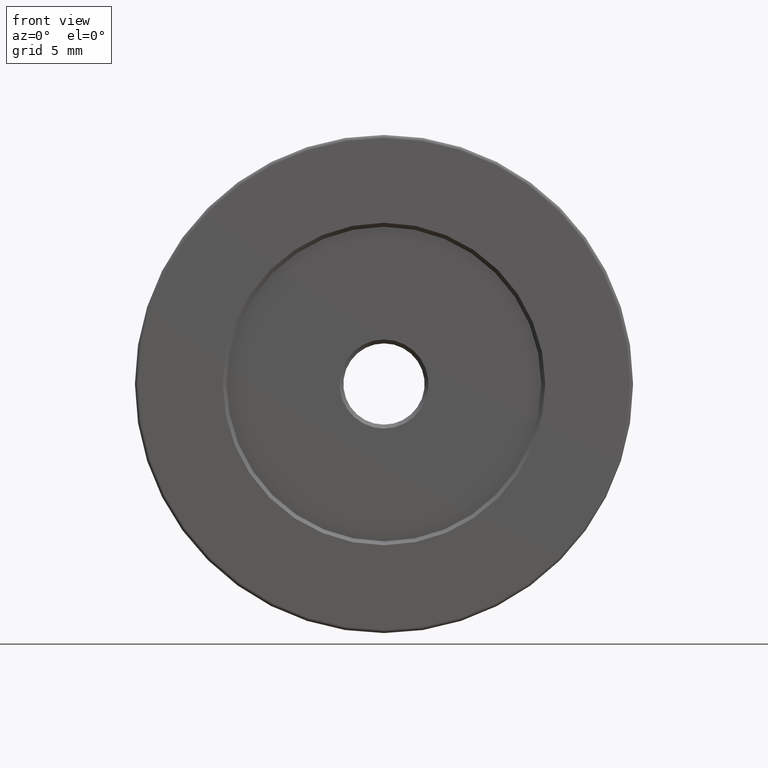
[diagram: clean part render]
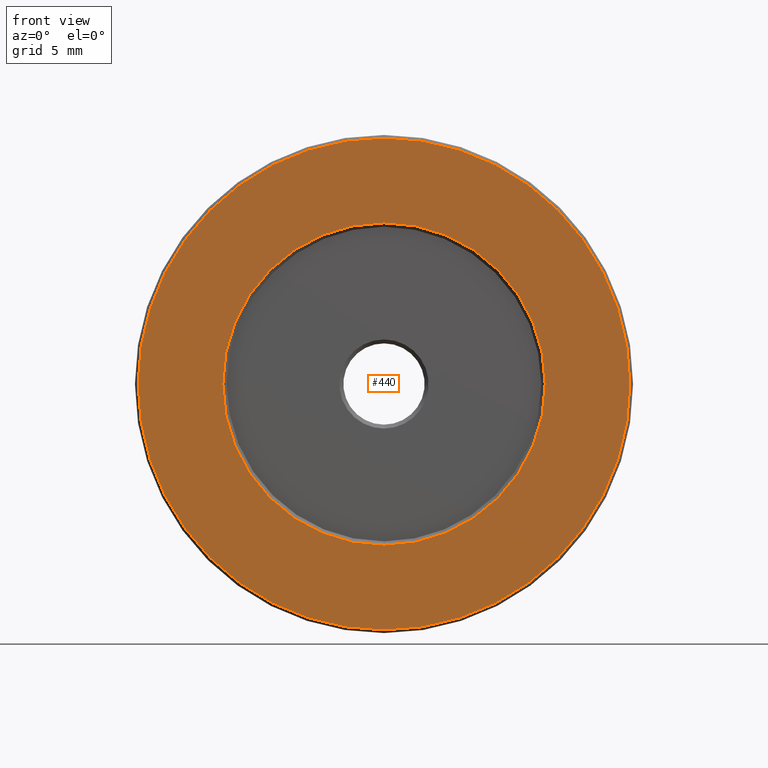
[diagram: same view with one face highlighted and labeled with its STEP entity id]
A machine part, front view. The second image highlights one B-rep face of the part: STEP entity #440.
In plain terms, the highlighted planar face has unit normal (0, 1, 0).
Its self-contained STEP definition (entity closure, byte-faithful):
#2 = ORIENTED_EDGE ( 'NONE', *, *, #85, .T. ) ;
#17 = DIRECTION ( 'NONE',  ( 0.000000000000000000, 0.000000000000000000, 1.000000000000000000 ) ) ;
#28 = VERTEX_POINT ( 'NONE', #605 ) ;
#48 = CARTESIAN_POINT ( 'NONE',  ( -7.546808913101045846, -10.39359512730272783, 19.25000000000000000 ) ) ;
#85 = EDGE_CURVE ( 'NONE', #426, #372, #377, .T. ) ;
#120 = ORIENTED_EDGE ( 'NONE', *, *, #368, .T. ) ;
#136 = DIRECTION ( 'NONE',  ( 0.000000000000000000, 0.000000000000000000, 1.000000000000000000 ) ) ;
#140 = AXIS2_PLACEMENT_3D ( 'NONE', #566, #147, #585 ) ;
#147 = DIRECTION ( 'NONE',  ( -0.000000000000000000, -1.000000000000000000, -0.000000000000000000 ) ) ;
#152 = DIRECTION ( 'NONE',  ( 0.000000000000000000, 1.000000000000000000, 0.000000000000000000 ) ) ;
#177 = DIRECTION ( 'NONE',  ( 0.000000000000000000, 1.000000000000000000, 0.000000000000000000 ) ) ;
#183 = CARTESIAN_POINT ( 'NONE',  ( -7.546808913101048510, -10.39359512730272783, 38.00000000000000000 ) ) ;
#283 = DIRECTION ( 'NONE',  ( 0.000000000000000000, 1.000000000000000000, 0.000000000000000000 ) ) ;
#299 = AXIS2_PLACEMENT_3D ( 'NONE', #183, #283, #510 ) ;
#310 = AXIS2_PLACEMENT_3D ( 'NONE', #444, #177, #454 ) ;
#311 = DIRECTION ( 'NONE',  ( -0.000000000000000000, -1.000000000000000000, -0.000000000000000000 ) ) ;
#315 = EDGE_CURVE ( 'NONE', #372, #426, #590, .T. ) ;
#328 = CARTESIAN_POINT ( 'NONE',  ( -7.546808913101048510, -10.39359512730272783, 25.69999999999999929 ) ) ;
#346 = AXIS2_PLACEMENT_3D ( 'NONE', #451, #311, #136 ) ;
#348 = CARTESIAN_POINT ( 'NONE',  ( -7.546808913101046734, -10.39359512730272783, 50.29999999999999716 ) ) ;
#354 = EDGE_LOOP ( 'NONE', ( #2, #589 ) ) ;
#368 = EDGE_CURVE ( 'NONE', #467, #28, #534, .T. ) ;
#372 = VERTEX_POINT ( 'NONE', #348 ) ;
#377 = CIRCLE ( 'NONE', #425, 12.29999999999999893 ) ;
#410 = FACE_OUTER_BOUND ( 'NONE', #538, .T. ) ;
#417 = CIRCLE ( 'NONE', #140, 18.74999999999999645 ) ;
#419 = ORIENTED_EDGE ( 'NONE', *, *, #530, .T. ) ;
#425 = AXIS2_PLACEMENT_3D ( 'NONE', #433, #152, #17 ) ;
#426 = VERTEX_POINT ( 'NONE', #328 ) ;
#433 = CARTESIAN_POINT ( 'NONE',  ( -7.546808913101048510, -10.39359512730272783, 38.00000000000000000 ) ) ;
#440 = ADVANCED_FACE ( 'NONE', ( #410, #466 ), #607, .F. ) ;
#444 = CARTESIAN_POINT ( 'NONE',  ( -7.546808913101048510, -10.39359512730272783, 38.00000000000000000 ) ) ;
#451 = CARTESIAN_POINT ( 'NONE',  ( -7.546808913101048510, -10.39359512730272783, 38.00000000000000000 ) ) ;
#454 = DIRECTION ( 'NONE',  ( 0.000000000000000000, 0.000000000000000000, 1.000000000000000000 ) ) ;
#466 = FACE_BOUND ( 'NONE', #354, .T. ) ;
#467 = VERTEX_POINT ( 'NONE', #48 ) ;
#510 = DIRECTION ( 'NONE',  ( 0.000000000000000000, -0.000000000000000000, 1.000000000000000000 ) ) ;
#530 = EDGE_CURVE ( 'NONE', #28, #467, #417, .T. ) ;
#534 = CIRCLE ( 'NONE', #346, 18.74999999999999645 ) ;
#538 = EDGE_LOOP ( 'NONE', ( #419, #120 ) ) ;
#566 = CARTESIAN_POINT ( 'NONE',  ( -7.546808913101048510, -10.39359512730272783, 38.00000000000000000 ) ) ;
#585 = DIRECTION ( 'NONE',  ( 0.000000000000000000, 0.000000000000000000, 1.000000000000000000 ) ) ;
#589 = ORIENTED_EDGE ( 'NONE', *, *, #315, .T. ) ;
#590 = CIRCLE ( 'NONE', #310, 12.29999999999999893 ) ;
#605 = CARTESIAN_POINT ( 'NONE',  ( -7.546808913101048510, -10.39359512730272783, 56.74999999999999289 ) ) ;
#607 = PLANE ( 'NONE',  #299 ) ;